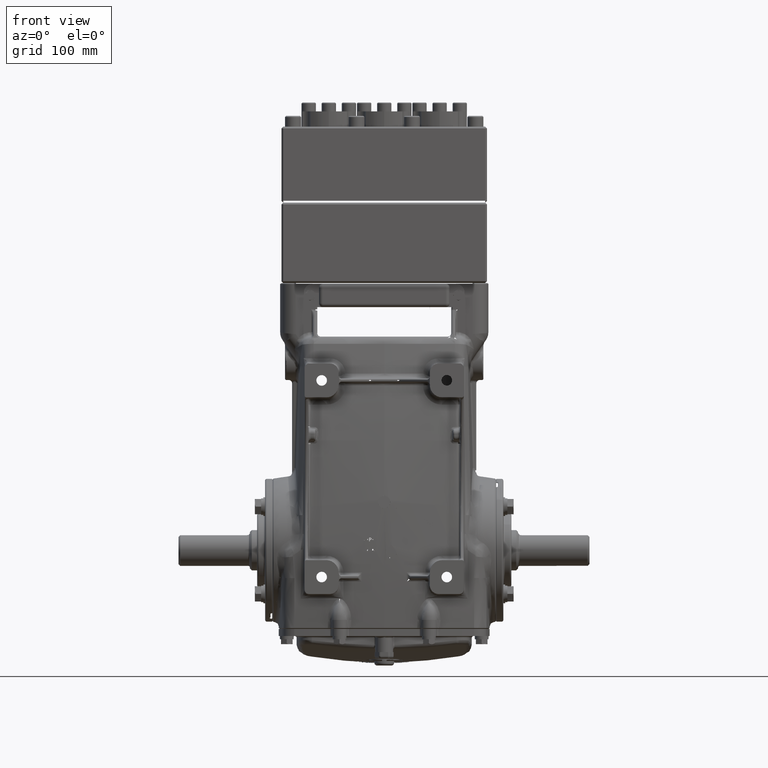
[diagram: clean part render]
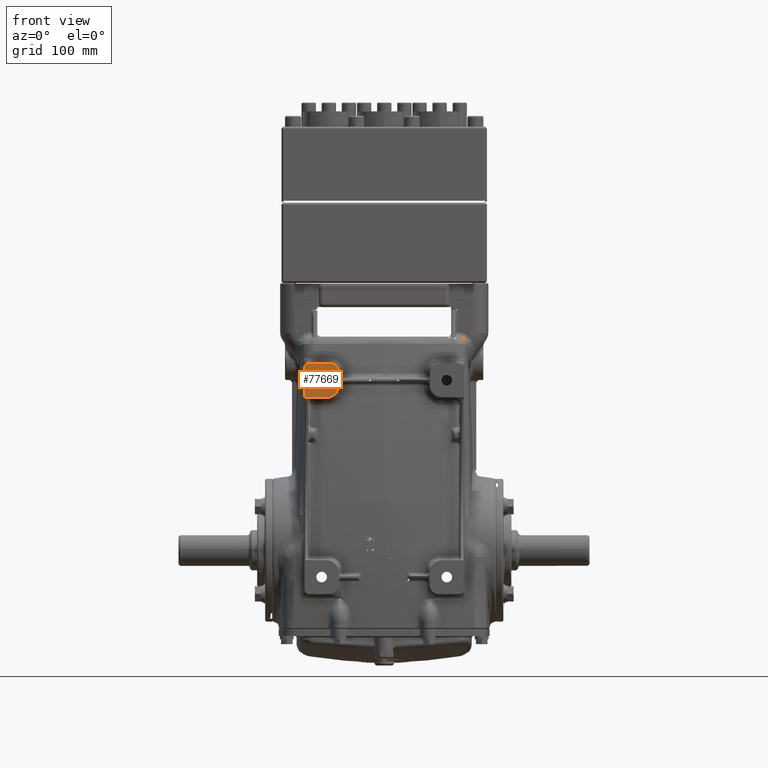
[diagram: same view with one face highlighted and labeled with its STEP entity id]
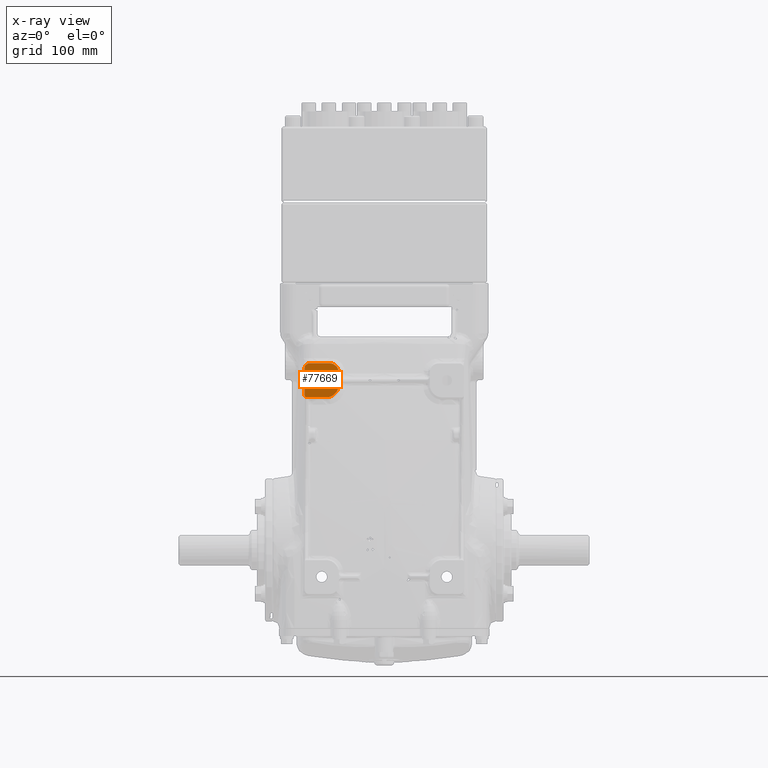
[diagram: x-ray of the same camera — body ghosted, the highlighted face saturated]
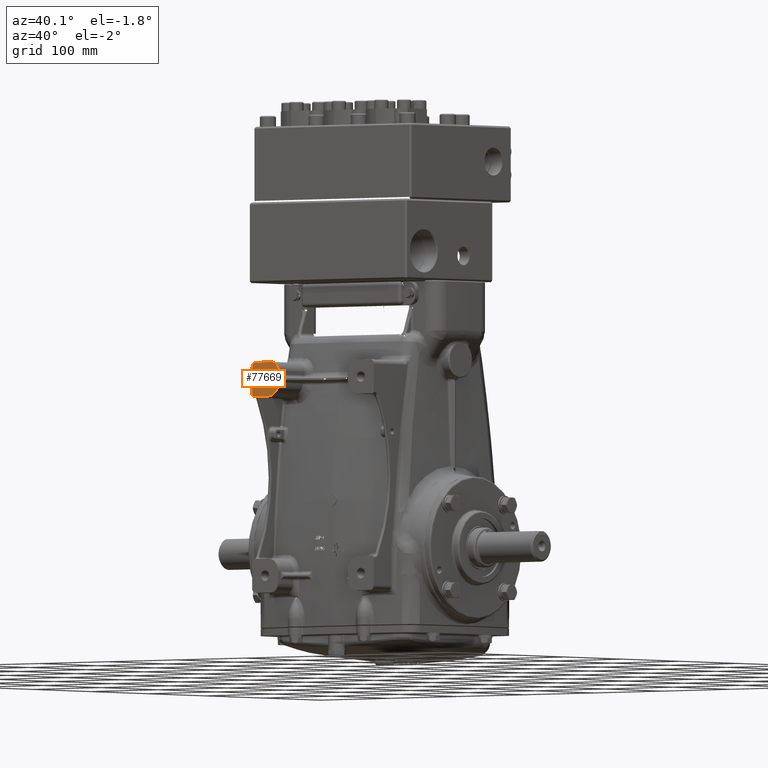
[diagram: same view with one face highlighted and labeled with its STEP entity id]
A machine part, front view. The second image highlights one B-rep face of the part: STEP entity #77669.
The next image is the same camera in x-ray: the body ghosted, the highlighted face saturated — about 0% of this face is hidden behind the body in this view.
A second angle (auxiliary view) of the same face is appended — the face is thin or edge-on in the first view.
In plain terms, the highlighted planar face has unit normal (0, -1, 0).
Its self-contained STEP definition (entity closure, byte-faithful):
#291 = CARTESIAN_POINT ( 'NONE',  ( -2.007874015748031038, -4.921259842519685179, 8.228346456692912980 ) ) ;
#713 = VECTOR ( 'NONE', #38066, 39.37007874015748143 ) ;
#917 = CARTESIAN_POINT ( 'NONE',  ( -3.495878278499196412, -4.921259842519685179, 6.776249337551246477 ) ) ;
#1091 = VERTEX_POINT ( 'NONE', #67416 ) ;
#5088 = CARTESIAN_POINT ( 'NONE',  ( -3.503937007874015297, -4.921259842519685179, 6.732283464566930498 ) ) ;
#7244 = VECTOR ( 'NONE', #92201, 39.37007874015748143 ) ;
#8046 = CIRCLE ( 'NONE', #23876, 0.1968503937007875793 ) ;
#12007 = DIRECTION ( 'NONE',  ( 0.0000000000000000000, 0.0000000000000000000, -1.000000000000000000 ) ) ;
#12383 = B_SPLINE_CURVE_WITH_KNOTS ( 'NONE', 3,
 ( #48002, #85834, #917, #38687 ),
 .UNSPECIFIED., .F., .F.,
 ( 4, 4 ),
 ( 0.0003720647506712412259, 0.0005440098712684401277 ),
 .UNSPECIFIED. ) ;
#13039 = EDGE_CURVE ( 'NONE', #91037, #106868, #90008, .T. ) ;
#13636 = ORIENTED_EDGE ( 'NONE', *, *, #21686, .T. ) ;
#13665 = EDGE_CURVE ( 'NONE', #19670, #1091, #118090, .T. ) ;
#13852 = CARTESIAN_POINT ( 'NONE',  ( -3.503937007874016185, -4.921259842519685179, -0.4330708661417321248 ) ) ;
#15492 = DIRECTION ( 'NONE',  ( 1.000000000000000000, 0.0000000000000000000, 0.0000000000000000000 ) ) ;
#16604 = LINE ( 'NONE', #54400, #7244 ) ;
#19260 = EDGE_CURVE ( 'NONE', #1091, #90445, #12383, .T. ) ;
#19670 = VERTEX_POINT ( 'NONE', #69536 ) ;
#21686 = EDGE_CURVE ( 'NONE', #91037, #75899, #85033, .T. ) ;
#22091 = DIRECTION ( 'NONE',  ( 0.0000000000000000000, -1.000000000000000000, 0.0000000000000000000 ) ) ;
#22406 = CARTESIAN_POINT ( 'NONE',  ( -2.401574803149605586, -4.921259842519685179, 8.228346456692912980 ) ) ;
#22853 = EDGE_CURVE ( 'NONE', #78567, #49578, #71206, .T. ) ;
#23143 = FACE_BOUND ( 'NONE', #44582, .T. ) ;
#23876 = AXIS2_PLACEMENT_3D ( 'NONE', #30577, #96892, #12007 ) ;
#25208 = CARTESIAN_POINT ( 'NONE',  ( -3.497893122359642337, -4.921259842519685179, 6.780288945227539443 ) ) ;
#26947 = CARTESIAN_POINT ( 'NONE',  ( -3.425196850393701364, -4.921259842519685179, 6.811023622047246207 ) ) ;
#27055 = ORIENTED_EDGE ( 'NONE', *, *, #112222, .T. ) ;
#29221 = DIRECTION ( 'NONE',  ( -0.0000000000000000000, -1.000000000000000000, -0.0000000000000000000 ) ) ;
#29984 = CARTESIAN_POINT ( 'NONE',  ( -2.755905511811022723, -4.921259842519685179, 7.713287401574802082 ) ) ;
#30577 = CARTESIAN_POINT ( 'NONE',  ( -3.307086614173228689, -4.921259842519685179, 8.031496062992124152 ) ) ;
#32327 = AXIS2_PLACEMENT_3D ( 'NONE', #106942, #22091, #59905 ) ;
#32331 = VERTEX_POINT ( 'NONE', #22406 ) ;
#33444 = CARTESIAN_POINT ( 'NONE',  ( -2.007874015748031038, -4.921259842519685179, 7.283464566929136019 ) ) ;
#34507 = CARTESIAN_POINT ( 'NONE',  ( -3.503423845351694599, -4.921259842519686067, 6.797397074645509463 ) ) ;
#35102 = DIRECTION ( 'NONE',  ( -0.0000000000000000000, -1.000000000000000000, -0.0000000000000000000 ) ) ;
#37873 = AXIS2_PLACEMENT_3D ( 'NONE', #26947, #64789, #102535 ) ;
#38066 = DIRECTION ( 'NONE',  ( -1.826024711554537611E-16, 0.0000000000000000000, -1.000000000000000000 ) ) ;
#38687 = CARTESIAN_POINT ( 'NONE',  ( -3.494823357746523307, -4.921259842519685179, 6.774251868296953027 ) ) ;
#39856 = CARTESIAN_POINT ( 'NONE',  ( -2.559055118110235671, -4.921259842519685179, 7.283464566929136019 ) ) ;
#42875 = DIRECTION ( 'NONE',  ( -1.000000000000000000, -0.0000000000000000000, -0.0000000000000000000 ) ) ;
#43623 = ORIENTED_EDGE ( 'NONE', *, *, #106150, .F. ) ;
#44582 = EDGE_LOOP ( 'NONE', ( #109914, #43623 ) ) ;
#47469 = ORIENTED_EDGE ( 'NONE', *, *, #19260, .T. ) ;
#48002 = CARTESIAN_POINT ( 'NONE',  ( -3.497893122359642337, -4.921259842519685179, 6.780288945227539443 ) ) ;
#49578 = VERTEX_POINT ( 'NONE', #29984 ) ;
#50460 = CARTESIAN_POINT ( 'NONE',  ( -2.755905511811022723, -4.921259842519685179, 7.247342519685038731 ) ) ;
#51636 = DIRECTION ( 'NONE',  ( 0.0000000000000000000, -1.000000000000000000, 0.0000000000000000000 ) ) ;
#53115 = AXIS2_PLACEMENT_3D ( 'NONE', #119899, #35102, #72931 ) ;
#54361 = EDGE_CURVE ( 'NONE', #97125, #32331, #85802, .T. ) ;
#54400 = CARTESIAN_POINT ( 'NONE',  ( -3.503937007874016185, -4.921259842519685179, -0.4330708661417321248 ) ) ;
#59905 = DIRECTION ( 'NONE',  ( 0.0000000000000000000, 0.0000000000000000000, -1.000000000000000000 ) ) ;
#60928 = CARTESIAN_POINT ( 'NONE',  ( -2.007874015748031038, -4.921259842519685179, 7.834645669291337100 ) ) ;
#60961 = FACE_OUTER_BOUND ( 'NONE', #91381, .T. ) ;
#62608 = LINE ( 'NONE', #100367, #89449 ) ;
#64789 = DIRECTION ( 'NONE',  ( 0.0000000000000000000, -1.000000000000000000, 0.0000000000000000000 ) ) ;
#65802 = ORIENTED_EDGE ( 'NONE', *, *, #13665, .T. ) ;
#67054 = DIRECTION ( 'NONE',  ( 0.0000000000000000000, 0.0000000000000000000, -1.000000000000000000 ) ) ;
#67058 = EDGE_CURVE ( 'NONE', #79332, #32331, #62608, .T. ) ;
#67416 = CARTESIAN_POINT ( 'NONE',  ( -3.497893122359642337, -4.921259842519685179, 6.780288945227539443 ) ) ;
#68497 = AXIS2_PLACEMENT_3D ( 'NONE', #39856, #77705, #115389 ) ;
#69055 = EDGE_CURVE ( 'NONE', #97125, #75899, #85212, .T. ) ;
#69536 = CARTESIAN_POINT ( 'NONE',  ( -3.503937007874016185, -4.921259842519685179, 6.806381922957635666 ) ) ;
#71206 = CIRCLE ( 'NONE', #84675, 0.2329724409448815925 ) ;
#72337 = CARTESIAN_POINT ( 'NONE',  ( -3.501408956378069703, -4.921259842519684291, 6.788667980406705382 ) ) ;
#72472 = AXIS2_PLACEMENT_3D ( 'NONE', #13852, #51636, #89477 ) ;
#72549 = ORIENTED_EDGE ( 'NONE', *, *, #85599, .T. ) ;
#72724 = CARTESIAN_POINT ( 'NONE',  ( -3.425196850393701364, -4.921259842519685179, 6.732283464566930498 ) ) ;
#72931 = DIRECTION ( 'NONE',  ( 0.0000000000000000000, 0.0000000000000000000, -1.000000000000000000 ) ) ;
#75899 = VERTEX_POINT ( 'NONE', #33444 ) ;
#77669 = ADVANCED_FACE ( 'NONE', ( #23143, #60961 ), #98724, .T. ) ;
#77705 = DIRECTION ( 'NONE',  ( 0.0000000000000000000, -1.000000000000000000, 0.0000000000000000000 ) ) ;
#78567 = VERTEX_POINT ( 'NONE', #50460 ) ;
#79332 = VERTEX_POINT ( 'NONE', #114311 ) ;
#81646 = CARTESIAN_POINT ( 'NONE',  ( -3.503937007874016185, -4.921259842519685179, 6.806381922957635666 ) ) ;
#84675 = AXIS2_PLACEMENT_3D ( 'NONE', #114052, #29221, #67054 ) ;
#85033 = CIRCLE ( 'NONE', #68497, 0.5511811023622051886 ) ;
#85212 = LINE ( 'NONE', #291, #713 ) ;
#85599 = EDGE_CURVE ( 'NONE', #79332, #97714, #8046, .T. ) ;
#85802 = CIRCLE ( 'NONE', #32327, 0.3937007874015751585 ) ;
#85834 = CARTESIAN_POINT ( 'NONE',  ( -3.496900669208788504, -4.921259842519685179, 6.778262102868417571 ) ) ;
#86366 = ORIENTED_EDGE ( 'NONE', *, *, #13039, .F. ) ;
#86531 = ORIENTED_EDGE ( 'NONE', *, *, #67058, .F. ) ;
#89449 = VECTOR ( 'NONE', #15492, 39.37007874015748143 ) ;
#89477 = DIRECTION ( 'NONE',  ( 0.0000000000000000000, -0.0000000000000000000, -1.000000000000000000 ) ) ;
#89584 = CARTESIAN_POINT ( 'NONE',  ( -3.494823357746523307, -4.921259842519685179, 6.774251868296953027 ) ) ;
#90008 = LINE ( 'NONE', #5088, #118091 ) ;
#90445 = VERTEX_POINT ( 'NONE', #89584 ) ;
#90961 = CARTESIAN_POINT ( 'NONE',  ( -2.559055118110235671, -4.921259842519685179, 6.732283464566930498 ) ) ;
#91037 = VERTEX_POINT ( 'NONE', #90961 ) ;
#91322 = CIRCLE ( 'NONE', #37873, 0.07874015748031502893 ) ;
#91381 = EDGE_LOOP ( 'NONE', ( #86531, #72549, #118682, #65802, #47469, #27055, #86366, #13636, #99350, #109379 ) ) ;
#92201 = DIRECTION ( 'NONE',  ( -0.0000000000000000000, -0.0000000000000000000, 1.000000000000000000 ) ) ;
#96892 = DIRECTION ( 'NONE',  ( 0.0000000000000000000, -1.000000000000000000, 0.0000000000000000000 ) ) ;
#97125 = VERTEX_POINT ( 'NONE', #60928 ) ;
#97714 = VERTEX_POINT ( 'NONE', #121654 ) ;
#98724 = PLANE ( 'NONE',  #72472 ) ;
#99350 = ORIENTED_EDGE ( 'NONE', *, *, #69055, .F. ) ;
#100367 = CARTESIAN_POINT ( 'NONE',  ( -3.503937007874015297, -4.921259842519685179, 8.228346456692912980 ) ) ;
#102535 = DIRECTION ( 'NONE',  ( 0.0000000000000000000, 0.0000000000000000000, -1.000000000000000000 ) ) ;
#106150 = EDGE_CURVE ( 'NONE', #49578, #78567, #106497, .T. ) ;
#106497 = CIRCLE ( 'NONE', #53115, 0.2329724409448815925 ) ;
#106868 = VERTEX_POINT ( 'NONE', #72724 ) ;
#106942 = CARTESIAN_POINT ( 'NONE',  ( -2.401574803149605586, -4.921259842519685179, 7.834645669291337100 ) ) ;
#109379 = ORIENTED_EDGE ( 'NONE', *, *, #54361, .T. ) ;
#109914 = ORIENTED_EDGE ( 'NONE', *, *, #22853, .F. ) ;
#110043 = CARTESIAN_POINT ( 'NONE',  ( -3.499887967183102244, -4.921259842519685179, 6.784362926941000183 ) ) ;
#112222 = EDGE_CURVE ( 'NONE', #90445, #106868, #91322, .T. ) ;
#114052 = CARTESIAN_POINT ( 'NONE',  ( -2.755905511811022723, -4.921259842519685179, 7.480314960629920407 ) ) ;
#114311 = CARTESIAN_POINT ( 'NONE',  ( -3.307086614173228689, -4.921259842519685179, 8.228346456692912980 ) ) ;
#115389 = DIRECTION ( 'NONE',  ( 0.0000000000000000000, 0.0000000000000000000, -1.000000000000000000 ) ) ;
#118090 = B_SPLINE_CURVE_WITH_KNOTS ( 'NONE', 3,
 ( #81646, #119303, #34507, #72337, #110043, #25208 ),
 .UNSPECIFIED., .F., .F.,
 ( 4, 2, 4 ),
 ( 2.775557561562891351E-17, 0.0003407462270329130924, 0.0006814924540657984293 ),
 .UNSPECIFIED. ) ;
#118091 = VECTOR ( 'NONE', #42875, 39.37007874015748143 ) ;
#118682 = ORIENTED_EDGE ( 'NONE', *, *, #122301, .F. ) ;
#119303 = CARTESIAN_POINT ( 'NONE',  ( -3.503937007874016185, -4.921259842519686067, 6.801845801294198246 ) ) ;
#119899 = CARTESIAN_POINT ( 'NONE',  ( -2.755905511811022723, -4.921259842519685179, 7.480314960629920407 ) ) ;
#121654 = CARTESIAN_POINT ( 'NONE',  ( -3.503937007874016185, -4.921259842519685179, 8.031496062992124152 ) ) ;
#122301 = EDGE_CURVE ( 'NONE', #19670, #97714, #16604, .T. ) ;